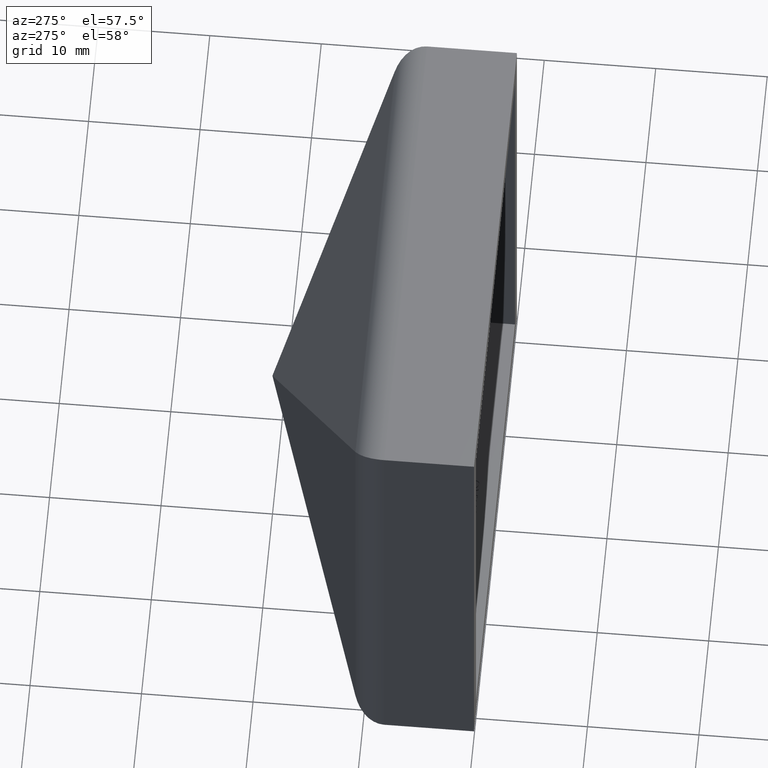
[diagram: clean part render]
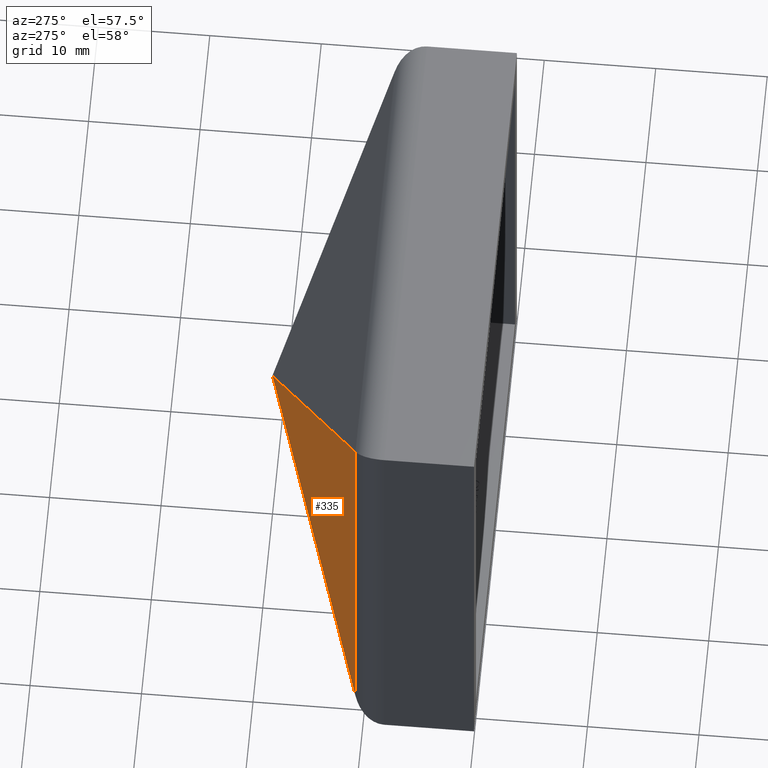
[diagram: same view with one face highlighted and labeled with its STEP entity id]
A machine part, auxiliary view. The second image highlights one B-rep face of the part: STEP entity #335.
In plain terms, the highlighted planar face has unit normal (0.4141, -0.9102, 0).
Its self-contained STEP definition (entity closure, byte-faithful):
#9 = CARTESIAN_POINT ( 'NONE',  ( -0.04141411556845056600, 19.99102126691979100, 0.04141411556844709600 ) ) ;
#110 = LINE ( 'NONE', #6863, #4508 ) ;
#335 = ADVANCED_FACE ( 'NONE', ( #5174 ), #11949, .F. ) ;
#443 = CARTESIAN_POINT ( 'NONE',  ( -0.04141411556845067700, 19.99102126691979100, -0.04141411556845044800 ) ) ;
#787 = CARTESIAN_POINT ( 'NONE',  ( -20.24242346705347400, 10.79968649216877500, 20.24242346705349500 ) ) ;
#1063 = DIRECTION ( 'NONE',  ( -0.0000000000000000000, -0.0000000000000000000, 1.000000000000000000 ) ) ;
#1527 = DIRECTION ( 'NONE',  ( -0.6731268672750941900, -0.3062685767505952700, 0.6731268672750944100 ) ) ;
#1639 = VERTEX_POINT ( 'NONE', #9 ) ;
#2372 = CARTESIAN_POINT ( 'NONE',  ( -1.102390710800173800, 19.50828345390880600, 1.102390710800170500 ) ) ;
#2787 = LINE ( 'NONE', #9379, #3392 ) ;
#3158 = CARTESIAN_POINT ( 'NONE',  ( -20.24242346705348400, 10.79968649216877100, -22.00000000000000000 ) ) ;
#3392 = VECTOR ( 'NONE', #10363, 1000.000000000000000 ) ;
#4066 = VERTEX_POINT ( 'NONE', #443 ) ;
#4508 = VECTOR ( 'NONE', #8874, 1000.000000000000000 ) ;
#4564 = EDGE_CURVE ( 'NONE', #1639, #5013, #7382, .T. ) ;
#4800 = VECTOR ( 'NONE', #1527, 1000.000000000000000 ) ;
#5013 = VERTEX_POINT ( 'NONE', #787 ) ;
#5129 = DIRECTION ( 'NONE',  ( 0.4141411556844959400, -0.9102126691978694700, 0.0000000000000000000 ) ) ;
#5174 = FACE_OUTER_BOUND ( 'NONE', #7242, .T. ) ;
#5249 = DIRECTION ( 'NONE',  ( 0.9102126691978694700, 0.4141411556844959400, 0.0000000000000000000 ) ) ;
#5914 = VECTOR ( 'NONE', #1063, 1000.000000000000000 ) ;
#6863 = CARTESIAN_POINT ( 'NONE',  ( -21.03878100649380300, 10.43734871893988700, -21.03878100649379200 ) ) ;
#7242 = EDGE_LOOP ( 'NONE', ( #12318, #9506, #11531, #11099 ) ) ;
#7382 = LINE ( 'NONE', #2372, #4800 ) ;
#7460 = AXIS2_PLACEMENT_3D ( 'NONE', #3158, #5129, #5249 ) ;
#7747 = EDGE_CURVE ( 'NONE', #11940, #4066, #110, .T. ) ;
#8874 = DIRECTION ( 'NONE',  ( 0.6731268672750945200, 0.3062685767505953800, 0.6731268672750939700 ) ) ;
#9379 = CARTESIAN_POINT ( 'NONE',  ( -0.04141411556845046900, 19.99102126691979100, -22.00000000000000000 ) ) ;
#9506 = ORIENTED_EDGE ( 'NONE', *, *, #11980, .T. ) ;
#9743 = CARTESIAN_POINT ( 'NONE',  ( -20.24242346705348400, 10.79968649216877100, -22.00000000000000000 ) ) ;
#10090 = EDGE_CURVE ( 'NONE', #4066, #1639, #2787, .T. ) ;
#10363 = DIRECTION ( 'NONE',  ( -0.0000000000000000000, -0.0000000000000000000, 1.000000000000000000 ) ) ;
#11099 = ORIENTED_EDGE ( 'NONE', *, *, #10090, .F. ) ;
#11281 = LINE ( 'NONE', #9743, #5914 ) ;
#11402 = CARTESIAN_POINT ( 'NONE',  ( -20.24242346705348400, 10.79968649216877100, -20.24242346705347400 ) ) ;
#11531 = ORIENTED_EDGE ( 'NONE', *, *, #4564, .F. ) ;
#11940 = VERTEX_POINT ( 'NONE', #11402 ) ;
#11949 = PLANE ( 'NONE',  #7460 ) ;
#11980 = EDGE_CURVE ( 'NONE', #11940, #5013, #11281, .T. ) ;
#12318 = ORIENTED_EDGE ( 'NONE', *, *, #7747, .F. ) ;